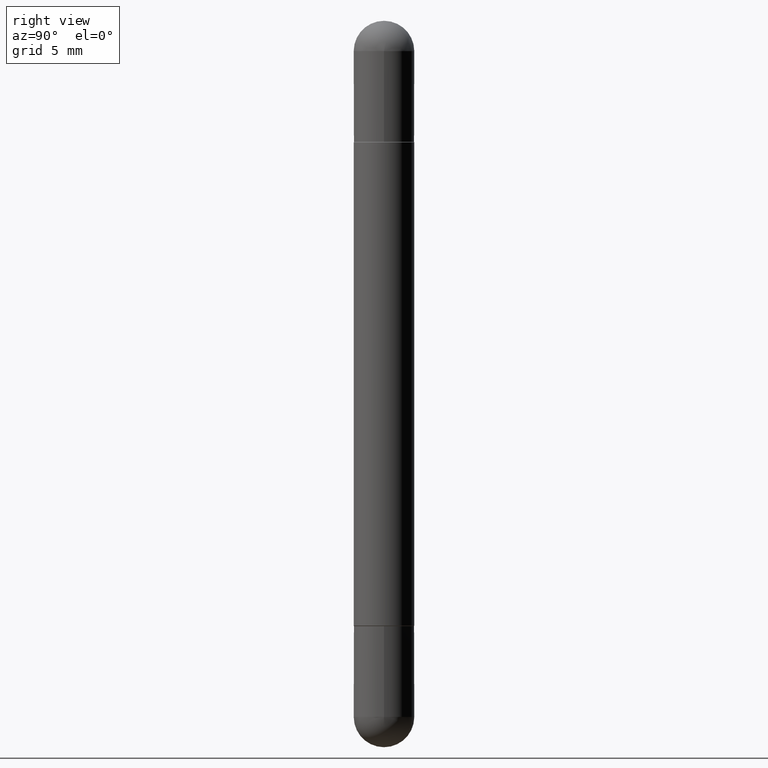
[diagram: clean part render]
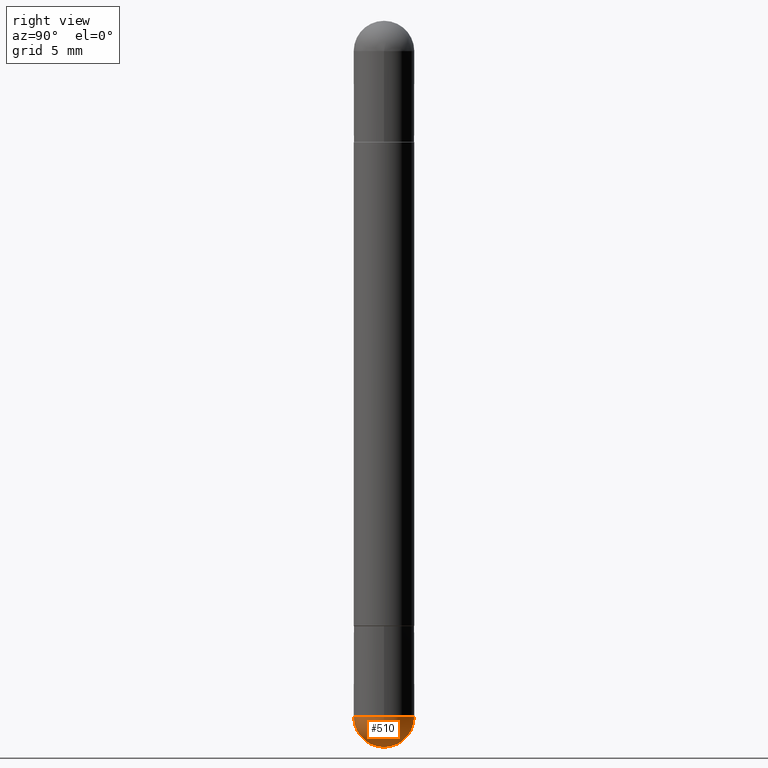
[diagram: same view with one face highlighted and labeled with its STEP entity id]
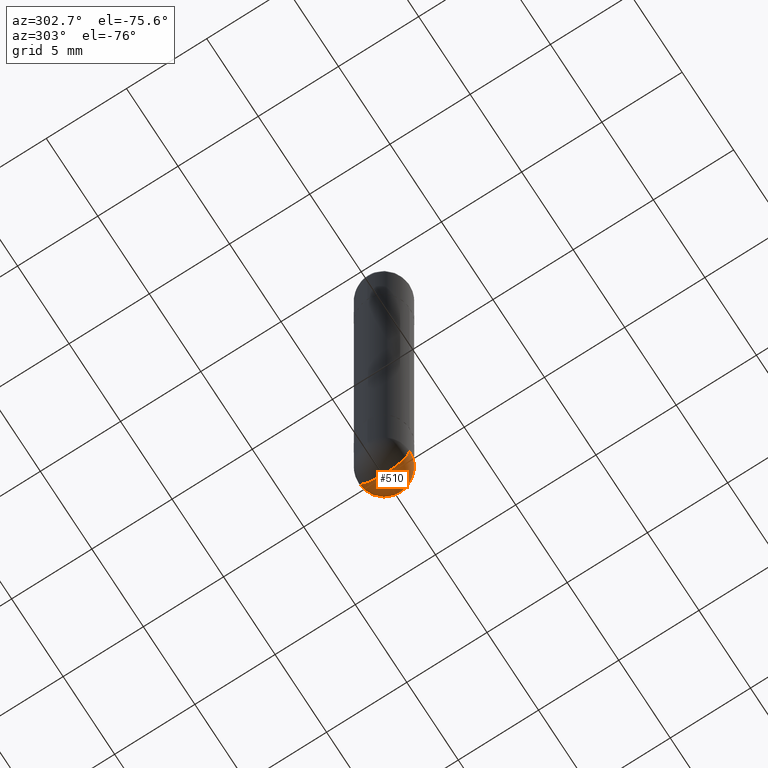
[diagram: same view with one face highlighted and labeled with its STEP entity id]
A machine part, right view. The second image highlights one B-rep face of the part: STEP entity #510.
A second angle (auxiliary view) of the same face is appended — the face is thin or edge-on in the first view.
In plain terms, the highlighted spherical surface has radius 1.5875 mm.
Its self-contained STEP definition (entity closure, byte-faithful):
#1 = DIRECTION ( 'NONE',  ( -7.105427357601000281E-15, -1.000000000000000000, 0.000000000000000000 ) ) ;
#17 = AXIS2_PLACEMENT_3D ( 'NONE', #178, #552, #565 ) ;
#49 = AXIS2_PLACEMENT_3D ( 'NONE', #201, #453, #78 ) ;
#61 = CARTESIAN_POINT ( 'NONE',  ( 3.184241630977248732E-29, -5.493186792727072638E-15, -1.437500000000000222 ) ) ;
#78 = DIRECTION ( 'NONE',  ( 1.000000000000000000, -6.982962677686261189E-15, 0.000000000000000000 ) ) ;
#103 = VERTEX_POINT ( 'NONE', #401 ) ;
#123 = CIRCLE ( 'NONE', #557, 0.06250000000000022204 ) ;
#132 = DIRECTION ( 'NONE',  ( 1.000000000000000000, -6.982962677686261189E-15, 0.000000000000000000 ) ) ;
#143 = SPHERICAL_SURFACE ( 'NONE', #572, 0.06250000000000022204 ) ;
#178 = CARTESIAN_POINT ( 'NONE',  ( 3.184241630977248732E-29, -5.493186792727072638E-15, -1.437500000000000222 ) ) ;
#192 = FACE_OUTER_BOUND ( 'NONE', #553, .T. ) ;
#201 = CARTESIAN_POINT ( 'NONE',  ( 3.515361408891134418E-29, -5.019004424587023131E-15, -1.437500000000000222 ) ) ;
#242 = AXIS2_PLACEMENT_3D ( 'NONE', #770, #520, #132 ) ;
#264 = EDGE_CURVE ( 'NONE', #273, #739, #123, .T. ) ;
#273 = VERTEX_POINT ( 'NONE', #561 ) ;
#278 = EDGE_CURVE ( 'NONE', #273, #308, #462, .T. ) ;
#286 = ORIENTED_EDGE ( 'NONE', *, *, #482, .F. ) ;
#292 = ORIENTED_EDGE ( 'NONE', *, *, #278, .T. ) ;
#295 = CIRCLE ( 'NONE', #242, 0.06250000000000001388 ) ;
#302 = ORIENTED_EDGE ( 'NONE', *, *, #264, .F. ) ;
#308 = VERTEX_POINT ( 'NONE', #372 ) ;
#370 = DIRECTION ( 'NONE',  ( -1.000000000000000000, 7.105427357601001070E-15, -4.926315508542082329E-29 ) ) ;
#372 = CARTESIAN_POINT ( 'NONE',  ( 4.364351673554259849E-16, 0.06249999999999485828, -1.437500000000000444 ) ) ;
#390 = CARTESIAN_POINT ( 'NONE',  ( 3.184241630977248732E-29, -5.493186792727072638E-15, -1.437500000000000222 ) ) ;
#401 = CARTESIAN_POINT ( 'NONE',  ( 0.06250000000000001388, -5.128113216425869076E-15, -1.437500000000000222 ) ) ;
#453 = DIRECTION ( 'NONE',  ( -2.445468806185136597E-29, 3.491481338843145583E-15, 1.000000000000000000 ) ) ;
#462 = CIRCLE ( 'NONE', #17, 0.06250000000000022204 ) ;
#482 = EDGE_CURVE ( 'NONE', #103, #308, #295, .T. ) ;
#501 = DIRECTION ( 'NONE',  ( -1.000000000000000000, 6.982962677686266711E-15, -4.883557194083112901E-29 ) ) ;
#510 = ADVANCED_FACE ( 'NONE', ( #192 ), #143, .T. ) ;
#520 = DIRECTION ( 'NONE',  ( -2.445468806185136597E-29, 3.491481338843145583E-15, 1.000000000000000000 ) ) ;
#552 = DIRECTION ( 'NONE',  ( 1.000000000000000000, -6.982962677686265922E-15, 4.883557194083112340E-29 ) ) ;
#553 = EDGE_LOOP ( 'NONE', ( #302, #292, #286, #805 ) ) ;
#557 = AXIS2_PLACEMENT_3D ( 'NONE', #61, #370, #1 ) ;
#561 = CARTESIAN_POINT ( 'NONE',  ( 3.339755826017505569E-29, -5.707577355157435366E-15, -1.500000000000000444 ) ) ;
#565 = DIRECTION ( 'NONE',  ( 6.982962677686266711E-15, 1.000000000000000000, 0.000000000000000000 ) ) ;
#572 = AXIS2_PLACEMENT_3D ( 'NONE', #390, #501, #758 ) ;
#644 = CARTESIAN_POINT ( 'NONE',  ( -4.440892098500298784E-16, -0.06250000000000537070, -1.437500000000000000 ) ) ;
#739 = VERTEX_POINT ( 'NONE', #644 ) ;
#757 = CIRCLE ( 'NONE', #49, 0.06250000000000001388 ) ;
#758 = DIRECTION ( 'NONE',  ( 6.982962677686266711E-15, 1.000000000000000000, -4.370956789862805372E-15 ) ) ;
#770 = CARTESIAN_POINT ( 'NONE',  ( 3.515361408891134418E-29, -5.019004424587023131E-15, -1.437500000000000222 ) ) ;
#795 = EDGE_CURVE ( 'NONE', #739, #103, #757, .T. ) ;
#805 = ORIENTED_EDGE ( 'NONE', *, *, #795, .F. ) ;